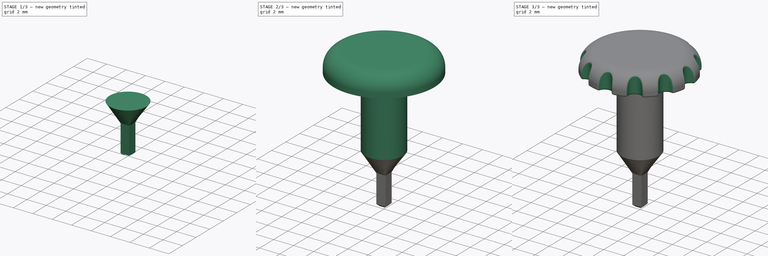
[diagram: build sequence overview — one tinted view per stage of 3, left to right]
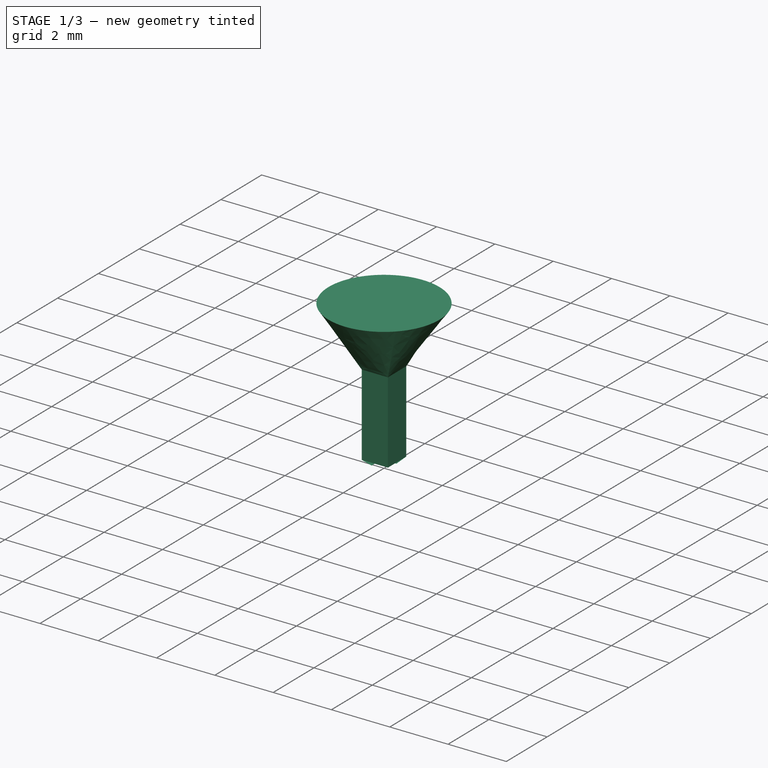
[diagram: stage 1 of 3 — iso view after this stage's code; geometry added in this stage tinted green]
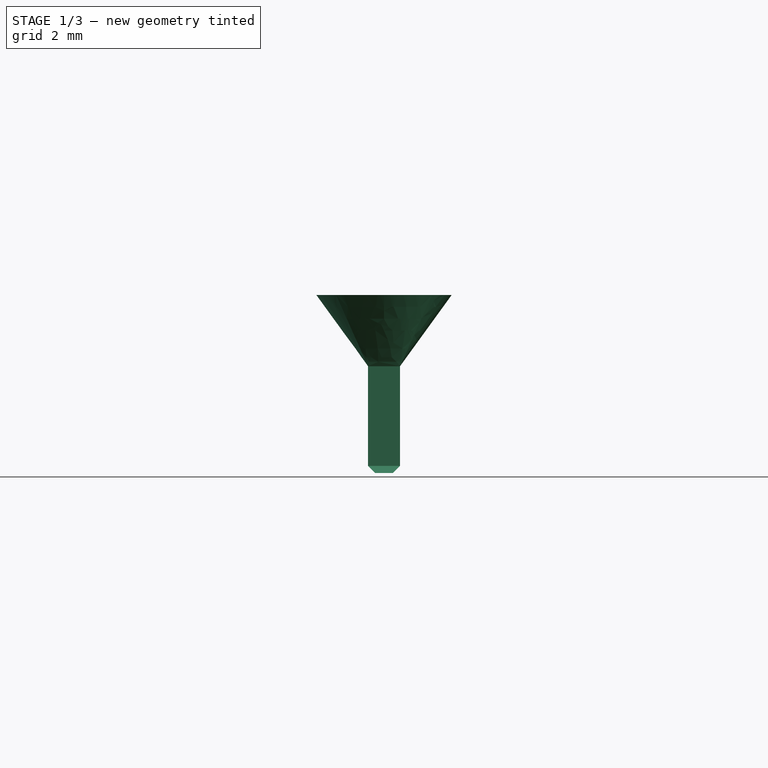
[diagram: stage 1 of 3 — front view after this stage's code; geometry added in this stage tinted green]
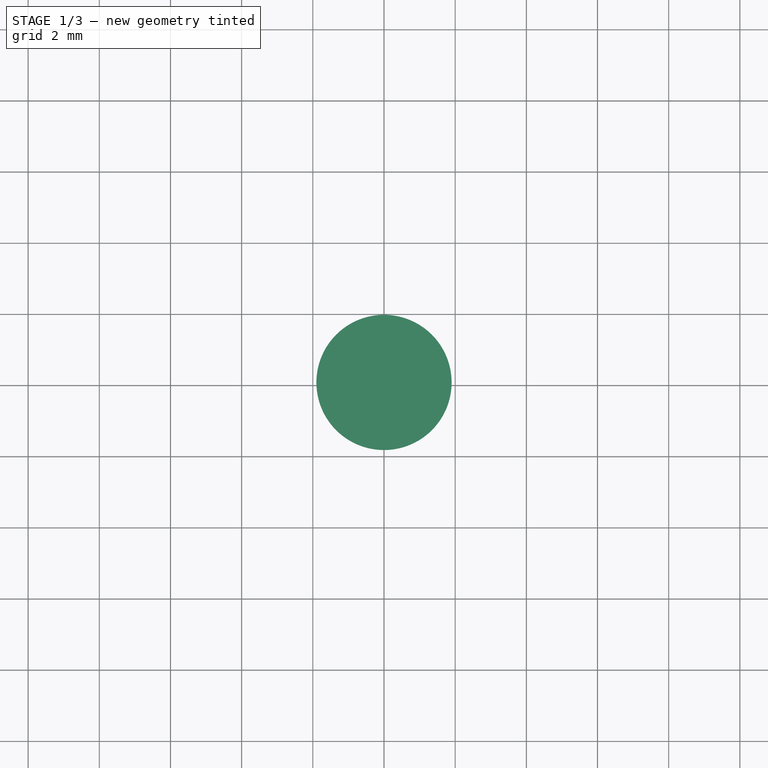
[diagram: stage 1 of 3 — top view after this stage's code; geometry added in this stage tinted green]
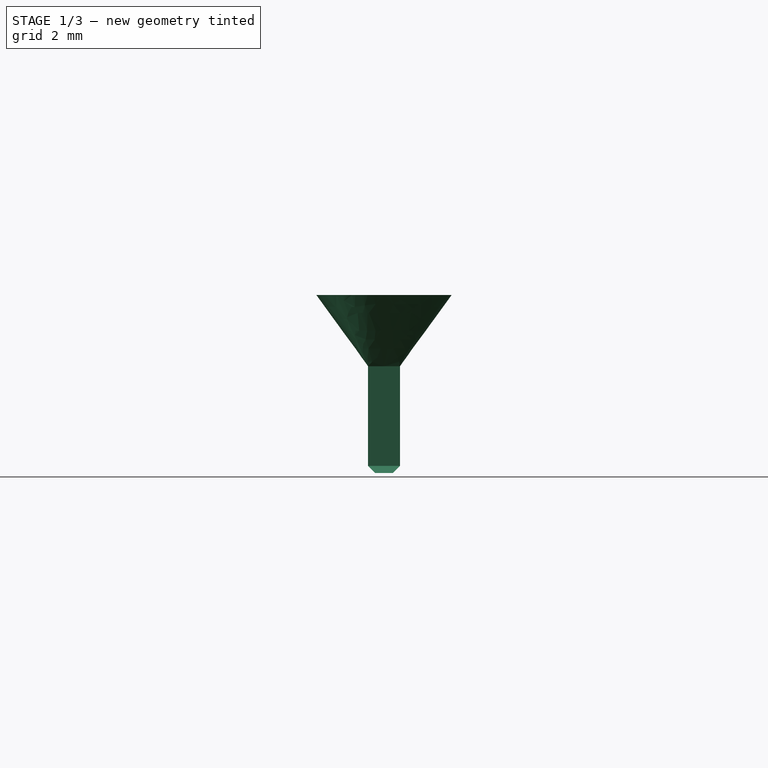
[diagram: stage 1 of 3 — right view after this stage's code; geometry added in this stage tinted green]
FCSTD DOCUMENT  (FreeCAD 1.0R38806 (Git))
Label: EncoderKnob
License: All rights reserved
LicenseURL: http://en.wikipedia.org/wiki/All_rights_reserved
objects: Sketcher::SketchObject×5, PartDesign::Pad×2, PartDesign::Fillet×2, PartDesign::AdditiveLoft×1, PartDesign::Chamfer×1, PartDesign::Pocket×1, PartDesign::Body×1
note: 32 computed .brp shape members not serialized (recipe doc carries the construction recipe); baked Part::Feature solids carry a one-line shape summary decoded from their .brp

FEATURE [Sketcher::SketchObject] Sketch002  label="Sketch 2"
  ArcFitTolerance = 0
  AttachmentOffset = pos=(0,0,5) rot=(0,0,1;0rad)
  AttachmentSupport = -> [XY_Plane]
  FullyConstrained = true
  MakeInternals = false
  MapMode = 5
  Placement = pos=(0,0,5) rot=(0,0,1;0rad)
  sketch-geometry (1):
    g0: Circle CenterX=0 CenterY=0 CenterZ=0 NormalX=0 NormalY=0 NormalZ=1 AngleXU=0 Radius=1.9
  constraints (2):
    c: Coincident(g0,g-1)
    c: Diameter(g0) = 3.8
FEATURE [Sketcher::SketchObject] Sketch  label="Sketch 0"
  ArcFitTolerance = 0
  AttachmentSupport = -> [XY_Plane]
  FullyConstrained = true
  MakeInternals = false
  MapMode = 5
  sketch-geometry (5):
    g0: LineSegment StartX=-0.45 StartY=-0.45 StartZ=0 EndX=-0.45 EndY=0.45 EndZ=0
    g1: LineSegment StartX=-0.45 StartY=0.45 StartZ=0 EndX=0.45 EndY=0.45 EndZ=0
    g2: LineSegment StartX=0.45 StartY=0.45 StartZ=0 EndX=0.45 EndY=-0.45 EndZ=0
    g3: LineSegment StartX=0.45 StartY=-0.45 StartZ=0 EndX=-0.45 EndY=-0.45 EndZ=0
    g4: GeomPoint [constr] X=0 Y=0 Z=0
  constraints (12):
    c: Coincident(g0,g1)
    c: Coincident(g1,g2)
    c: Coincident(g2,g3)
    c: Coincident(g3,g0)
    c: Horizontal(g1)
    c: Horizontal(g3)
    c: Vertical(g0)
    c: Vertical(g2)
    c: Symmetric(g1,g0,g4)
    c: Coincident(g4,g-1)
    c: Equal(g1,g2)
    c: DistanceX(g3,g3) = 0.9
FEATURE [Sketcher::SketchObject] Sketch001  label="Sketch 1"
  ArcFitTolerance = 0
  AttachmentOffset = pos=(0,0,3) rot=(0,0,1;0rad)
  AttachmentSupport = -> [Sketch]
  ExternalGeometry = -> [Sketch]
  FullyConstrained = true
  MakeInternals = false
  MapMode = 2
  Placement = pos=(0,0,3) rot=(0,0,1;0rad)
  sketch-geometry (4):
    g0: LineSegment StartX=-0.45 StartY=0.45 StartZ=0 EndX=0.45 EndY=0.45 EndZ=0
    g1: LineSegment StartX=0.45 StartY=0.45 StartZ=0 EndX=0.45 EndY=-0.45 EndZ=0
    g2: LineSegment StartX=0.45 StartY=-0.45 StartZ=0 EndX=-0.45 EndY=-0.45 EndZ=0
    g3: LineSegment StartX=-0.45 StartY=-0.45 StartZ=0 EndX=-0.45 EndY=0.45 EndZ=0
  constraints (10):
    c: Coincident(g0,g1)
    c: Coincident(g1,g2)
    c: Coincident(g2,g3)
    c: Coincident(g3,g0)
    c: Horizontal(g0)
    c: Horizontal(g2)
    c: Vertical(g1)
    c: Vertical(g3)
    c: Coincident(g0,g-3)
    c: Coincident(g1,g-4)
FEATURE [PartDesign::AdditiveLoft] AdditiveLoft
  Closed = false
  Profile = -> Sketch
  Refine = true
  Ruled = true
  Sections = -> [Sketch001,Sketch002]
  Suppressed = false
FEATURE [PartDesign::Chamfer] Chamfer
  Angle = 45
  Base = -> AdditiveLoft [Edge5,Edge4,Edge3,Edge2,Edge1]
  BaseFeature = -> AdditiveLoft
  ChamferType = 0
  FlipDirection = false
  Size = 0.2
  Size2 = 1
  SupportTransform = false
  Suppressed = false
  UseAllEdges = false
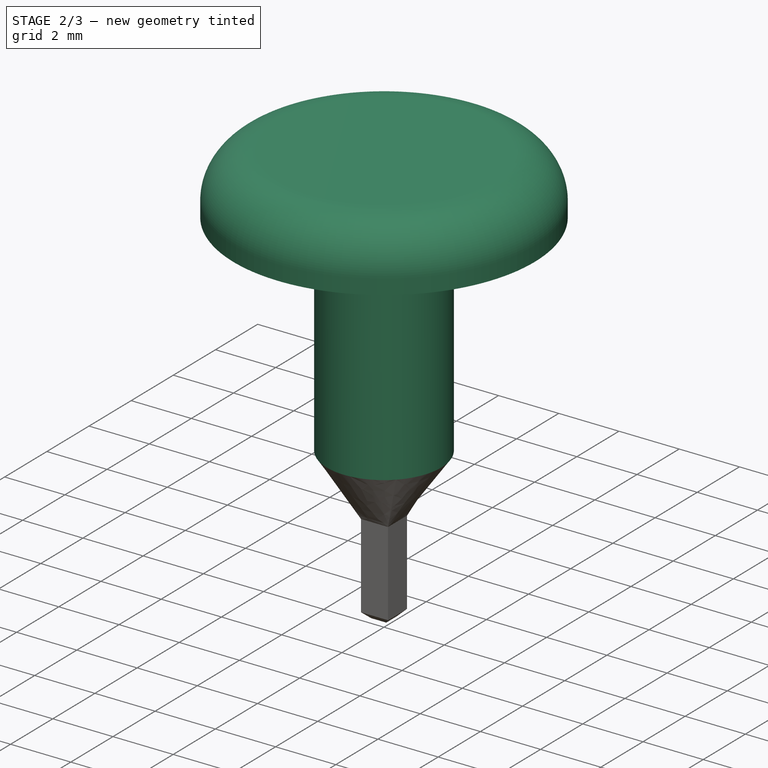
[diagram: stage 2 of 3 — iso view after this stage's code; geometry added in this stage tinted green]
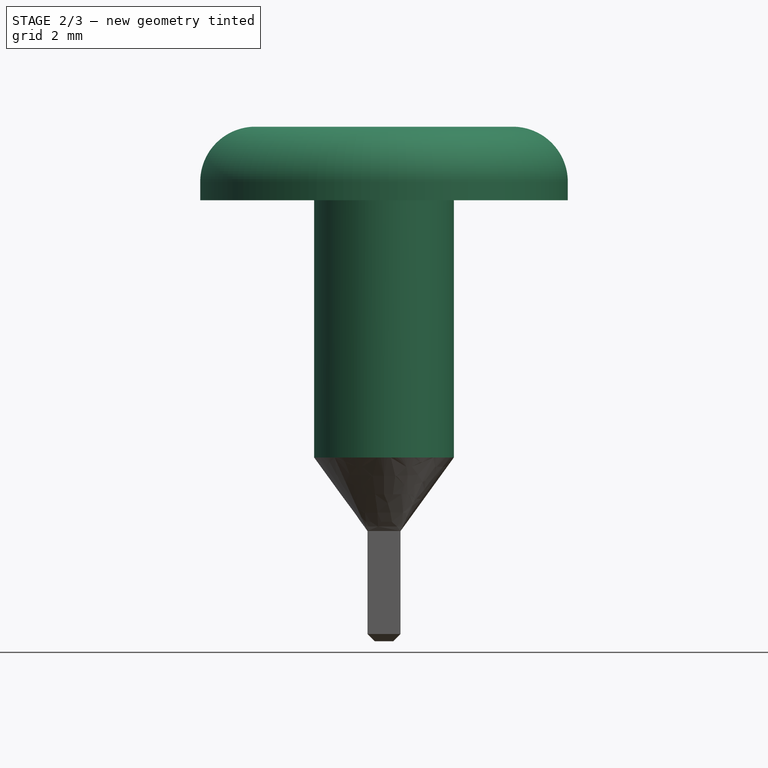
[diagram: stage 2 of 3 — front view after this stage's code; geometry added in this stage tinted green]
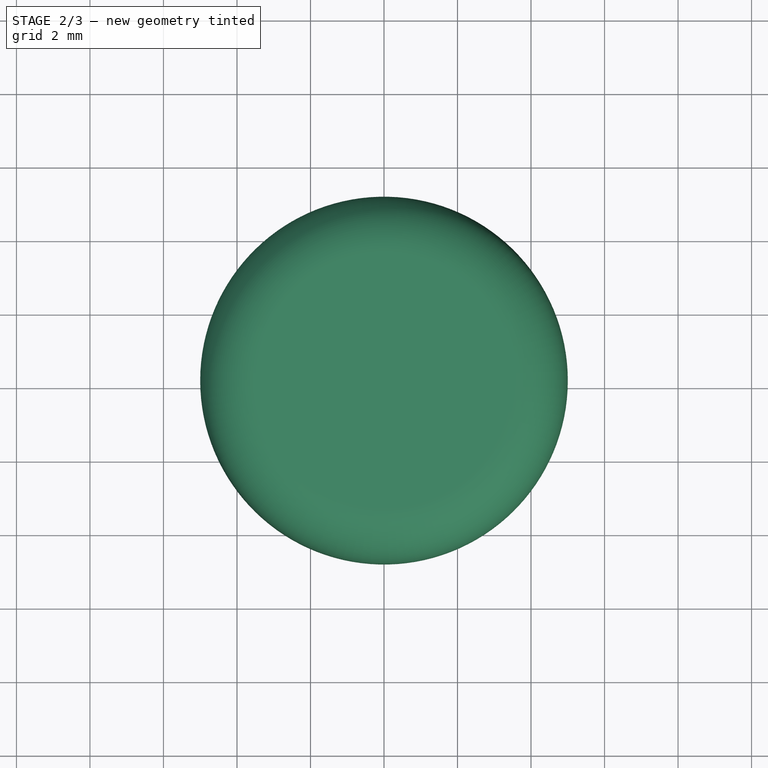
[diagram: stage 2 of 3 — top view after this stage's code; geometry added in this stage tinted green]
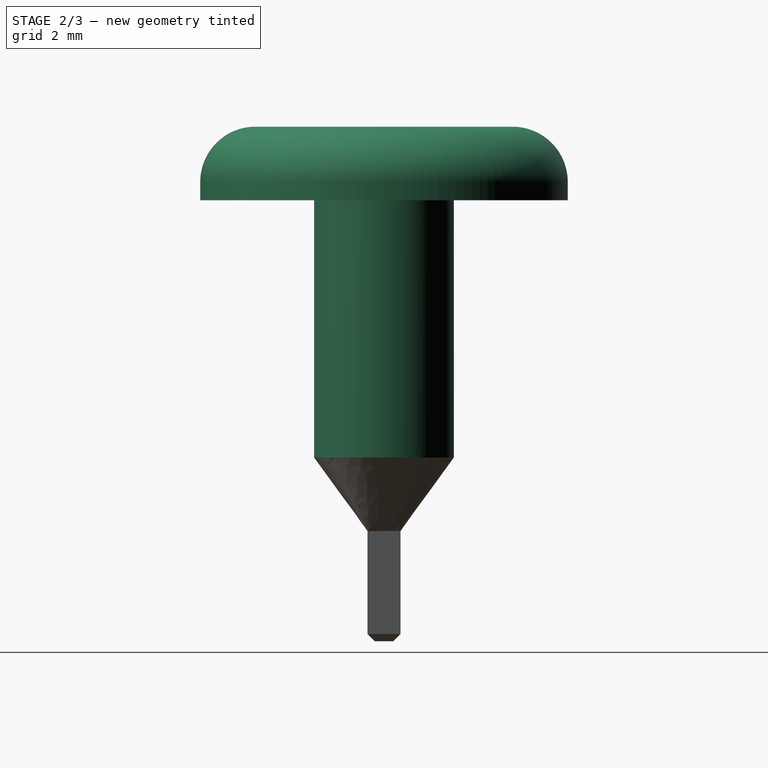
[diagram: stage 2 of 3 — right view after this stage's code; geometry added in this stage tinted green]
FEATURE [PartDesign::Pad] Pad
  BaseFeature = -> Chamfer
  Direction = (0,0,1)
  Length = 7
  Length2 = 10
  Profile = -> Sketch002
  ReferenceAxis = -> Sketch002 [N_Axis]
  Suppressed = false
  Type = 0
FEATURE [Sketcher::SketchObject] Sketch003
  ArcFitTolerance = 0
  AttachmentSupport = -> [Pad]
  ExternalGeometry = -> [Pad]
  FullyConstrained = true
  MakeInternals = false
  MapMode = 5
  Placement = pos=(0,0,12) rot=(0,0,1;0rad)
  sketch-geometry (1):
    g0: Circle CenterX=0 CenterY=0 CenterZ=0 NormalX=0 NormalY=0 NormalZ=1 AngleXU=0 Radius=5
  constraints (2):
    c: Diameter(g0) = 10
    c: Coincident(g0,g-3)
FEATURE [PartDesign::Pad] Pad001
  BaseFeature = -> Pad
  Direction = (0,0,1)
  Length = 2
  Length2 = 10
  Profile = -> Sketch003
  ReferenceAxis = -> Sketch003 [N_Axis]
  Suppressed = false
  Type = 0
FEATURE [Sketcher::SketchObject] Sketch004
  ArcFitTolerance = 0
  AttachmentSupport = -> [Pad001]
  ExternalGeometry = -> [Pad001]
  FullyConstrained = true
  MakeInternals = false
  MapMode = 5
  Placement = pos=(0,0,14) rot=(0,0,1;0rad)
  sketch-geometry (36):
    g0: ArcOfCircle CenterX=0 CenterY=5 CenterZ=0 NormalX=0 NormalY=0 NormalZ=1 AngleXU=0 Radius=0.6 StartAngle=3.20163 EndAngle=6.22315
    g1: ArcOfCircle CenterX=2.5 CenterY=4.33013 CenterZ=0 NormalX=0 NormalY=0 NormalZ=1 AngleXU=0 Radius=0.6 StartAngle=2.67803 EndAngle=5.69955
    g2: ArcOfCircle CenterX=4.33013 CenterY=2.5 CenterZ=0 NormalX=0 NormalY=0 NormalZ=1 AngleXU=0 Radius=0.6 StartAngle=2.15443 EndAngle=5.17595
    g3: ArcOfCircle CenterX=5 CenterY=0 CenterZ=0 NormalX=0 NormalY=0 NormalZ=1 AngleXU=0 Radius=0.6 StartAngle=1.63083 EndAngle=4.65235
    g4: ArcOfCircle CenterX=4.33013 CenterY=-2.5 CenterZ=0 NormalX=0 NormalY=0 NormalZ=1 AngleXU=0 Radius=0.6 StartAngle=1.10723 EndAngle=4.12875
    g5: ArcOfCircle CenterX=2.5 CenterY=-4.33013 CenterZ=0 NormalX=0 NormalY=0 NormalZ=1 AngleXU=0 Radius=0.6 StartAngle=0.583635 EndAngle=3.60516
    g6: ArcOfCircle CenterX=0 CenterY=-5 CenterZ=0 NormalX=0 NormalY=0 NormalZ=1 AngleXU=0 Radius=0.6 StartAngle=0.0600361 EndAngle=3.08156
    g7: ArcOfCircle CenterX=-2.5 CenterY=-4.33013 CenterZ=0 NormalX=0 NormalY=0 NormalZ=1 AngleXU=0 Radius=0.6 StartAngle=5.81962 EndAngle=8.84114
    g8: ArcOfCircle CenterX=-4.33013 CenterY=-2.5 CenterZ=0 NormalX=0 NormalY=0 NormalZ=1 AngleXU=0 Radius=0.6 StartAngle=5.29602 EndAngle=8.31754
    g9: ArcOfCircle CenterX=-5 CenterY=0 CenterZ=0 NormalX=0 NormalY=0 NormalZ=1 AngleXU=0 Radius=0.6 StartAngle=4.77243 EndAngle=7.79395
    g10: ArcOfCircle CenterX=-4.33013 CenterY=2.5 CenterZ=0 NormalX=0 NormalY=0 NormalZ=1 AngleXU=0 Radius=0.6 StartAngle=4.24883 EndAngle=7.27035
    g11: ArcOfCircle CenterX=-2.5 CenterY=4.33013 CenterZ=0 NormalX=0 NormalY=0 NormalZ=1 AngleXU=0 Radius=0.6 StartAngle=3.72523 EndAngle=6.74675
    g12: LineSegment [constr] StartX=0 StartY=0 StartZ=0 EndX=0 EndY=5 EndZ=0
    g13: LineSegment [constr] StartX=0 StartY=0 StartZ=0 EndX=2.5 EndY=4.33013 EndZ=0
    g14: LineSegment [constr] StartX=0 StartY=0 StartZ=0 EndX=4.33013 EndY=2.5 EndZ=0
    g15: LineSegment [constr] StartX=0 StartY=0 StartZ=0 EndX=5 EndY=0 EndZ=0
    g16: LineSegment [constr] StartX=0 StartY=0 StartZ=0 EndX=4.33013 EndY=-2.5 EndZ=0
    g17: LineSegment [constr] StartX=0 StartY=0 StartZ=0 EndX=2.5 EndY=-4.33013 EndZ=0
    g18: LineSegment [constr] StartX=0 StartY=0 StartZ=0 EndX=0 EndY=-5 EndZ=0
    g19: LineSegment [constr] StartX=0 StartY=0 StartZ=0 EndX=-2.5 EndY=-4.33013 EndZ=0
    g20: LineSegment [constr] StartX=0 StartY=0 StartZ=0 EndX=-4.33013 EndY=-2.5 EndZ=0
    g21: LineSegment [constr] StartX=0 StartY=0 StartZ=0 EndX=-5 EndY=0 EndZ=0
    g22: LineSegment [constr] StartX=0 StartY=0 StartZ=0 EndX=-4.33013 EndY=2.5 EndZ=0
    g23: LineSegment [constr] StartX=0 StartY=0 StartZ=0 EndX=-2.5 EndY=4.33013 EndZ=0
    g24: ArcOfCircle CenterX=0 CenterY=0 CenterZ=0 NormalX=0 NormalY=0 NormalZ=1 AngleXU=0 Radius=5 StartAngle=1.45072 EndAngle=1.69087
    g25: ArcOfCircle CenterX=0 CenterY=0 CenterZ=0 NormalX=0 NormalY=0 NormalZ=1 AngleXU=0 Radius=5 StartAngle=0.927125 EndAngle=1.16727
    g26: ArcOfCircle CenterX=0 CenterY=0 CenterZ=0 NormalX=0 NormalY=0 NormalZ=1 AngleXU=0 Radius=5 StartAngle=0.403527 EndAngle=0.643671
    g27: ArcOfCircle CenterX=0 CenterY=0 CenterZ=0 NormalX=0 NormalY=0 NormalZ=1 AngleXU=0 Radius=5 StartAngle=6.16311 EndAngle=6.40326
    g28: ArcOfCircle CenterX=0 CenterY=0 CenterZ=0 NormalX=0 NormalY=0 NormalZ=1 AngleXU=0 Radius=5 StartAngle=5.63951 EndAngle=5.87966
    g29: ArcOfCircle CenterX=0 CenterY=0 CenterZ=0 NormalX=0 NormalY=0 NormalZ=1 AngleXU=0 Radius=5 StartAngle=5.11592 EndAngle=5.35606
    g30: ArcOfCircle CenterX=0 CenterY=0 CenterZ=0 NormalX=0 NormalY=0 NormalZ=1 AngleXU=0 Radius=5 StartAngle=4.59232 EndAngle=4.83246
    g31: ArcOfCircle CenterX=0 CenterY=0 CenterZ=0 NormalX=0 NormalY=0 NormalZ=1 AngleXU=0 Radius=5 StartAngle=4.06872 EndAngle=4.30886
    g32: ArcOfCircle CenterX=0 CenterY=0 CenterZ=0 NormalX=0 NormalY=0 NormalZ=1 AngleXU=0 Radius=5 StartAngle=3.54512 EndAngle=3.78526
    g33: ArcOfCircle CenterX=0 CenterY=0 CenterZ=0 NormalX=0 NormalY=0 NormalZ=1 AngleXU=0 Radius=5 StartAngle=3.02152 EndAngle=3.26166
    g34: ArcOfCircle CenterX=0 CenterY=0 CenterZ=0 NormalX=0 NormalY=0 NormalZ=1 AngleXU=0 Radius=5 StartAngle=2.49792 EndAngle=2.73807
    g35: ArcOfCircle CenterX=0 CenterY=0 CenterZ=0 NormalX=0 NormalY=0 NormalZ=1 AngleXU=0 Radius=5 StartAngle=1.97432 EndAngle=2.21447
  constraints (108):
    c: PointOnObject(g0,g-3)
    c: PointOnObject(g0,g-3)
    c: Diameter(g0) = 1.2
    c: PointOnObject(g1,g-3)
    c: PointOnObject(g1,g-3)
    c: Equal(g0,g1)
    c: PointOnObject(g2,g-3)
    c: PointOnObject(g2,g-3)
    c: PointOnObject(g3,g-3)
    c: PointOnObject(g3,g-3)
    c: PointOnObject(g4,g-3)
    c: PointOnObject(g4,g-3)
    c: PointOnObject(g5,g-3)
    c: PointOnObject(g5,g-3)
    c: PointOnObject(g6,g-3)
    c: PointOnObject(g6,g-3)
    c: PointOnObject(g7,g-3)
    c: PointOnObject(g7,g-3)
    c: PointOnObject(g8,g-3)
    c: PointOnObject(g8,g-3)
    c: PointOnObject(g9,g-3)
    c: PointOnObject(g9,g-3)
    c: PointOnObject(g10,g-3)
    c: PointOnObject(g10,g-3)
    c: PointOnObject(g11,g-3)
    c: Equal(g0,g2)
    c: Coincident(g12,g-3)
    c: Coincident(g12,g0)
    c: Coincident(g13,g12)
    c: Coincident(g13,g1)
    c: Coincident(g14,g12)
    c: Coincident(g14,g2)
    c: Coincident(g15,g12)
    c: Coincident(g15,g3)
    c: Horizontal(g15)
    c: Coincident(g16,g12)
    c: Coincident(g16,g4)
    c: Coincident(g17,g12)
    c: Coincident(g17,g5)
    c: Coincident(g18,g12)
    c: Coincident(g18,g6)
    c: Vertical(g18)
    c: Coincident(g19,g12)
    c: Coincident(g19,g7)
    c: Coincident(g20,g12)
    c: Coincident(g20,g8)
    c: Coincident(g21,g12)
    c: Coincident(g21,g9)
    c: Horizontal(g21)
    c: Coincident(g22,g12)
    c: Coincident(g22,g10)
    c: Coincident(g23,g12)
    c: Coincident(g23,g11)
    c: Angle(g15,g14) = 0.523599
    c: Angle(g12,g23) = 0.523599
    c: Angle(g23,g22) = 0.523599
    c: Angle(g21,g20) = 0.523599
    c: Angle(g20,g19) = 0.523599
    c: Angle(g18,g17) = 0.523599
    c: Angle(g17,g16) = 0.523599
    c: Equal(g0,g4)
    c: Equal(g0,g8)
    c: Angle(g14,g13) = 0.523599
    c: PointOnObject(g11,g-3)
    c: Equal(g0,g11)
    c: Equal(g0,g10)
    c: Equal(g0,g6)
    c: Equal(g0,g3)
    c: Coincident(g24,g12)
    c: Coincident(g24,g0)
    c: Coincident(g24,g0)
    c: Coincident(g25,g24)
    c: Coincident(g25,g1)
    c: Coincident(g25,g1)
    c: Coincident(g26,g24)
    c: Coincident(g26,g2)
    c: Coincident(g26,g2)
    c: Coincident(g27,g24)
    c: Coincident(g27,g3)
    c: Coincident(g27,g3)
    c: Coincident(g28,g24)
    c: Coincident(g28,g4)
    c: Coincident(g28,g4)
    c: Coincident(g29,g24)
    c: Coincident(g29,g5)
    c: Coincident(g29,g5)
    c: Coincident(g30,g24)
    c: Coincident(g30,g6)
    c: Coincident(g30,g6)
    c: Coincident(g31,g24)
    c: Coincident(g31,g7)
    c: Coincident(g31,g7)
    c: Coincident(g32,g24)
    c: Coincident(g32,g8)
    c: Coincident(g32,g8)
    c: Coincident(g33,g24)
    c: Coincident(g33,g9)
    c: Coincident(g33,g9)
    c: Coincident(g34,g24)
    c: Coincident(g34,g10)
    c: Coincident(g34,g10)
    c: Coincident(g35,g24)
    c: Coincident(g35,g11)
    c: Coincident(g35,g11)
    c: Equal(g7,g0)
    c: Equal(g9,g0)
    c: Vertical(g12)
    c: Equal(g5,g0)
FEATURE [PartDesign::Fillet] Fillet001
  Base = -> Pad001 [Edge3]
  BaseFeature = -> Pad001
  Radius = 1.5
  SupportTransform = false
  Suppressed = false
  UseAllEdges = false
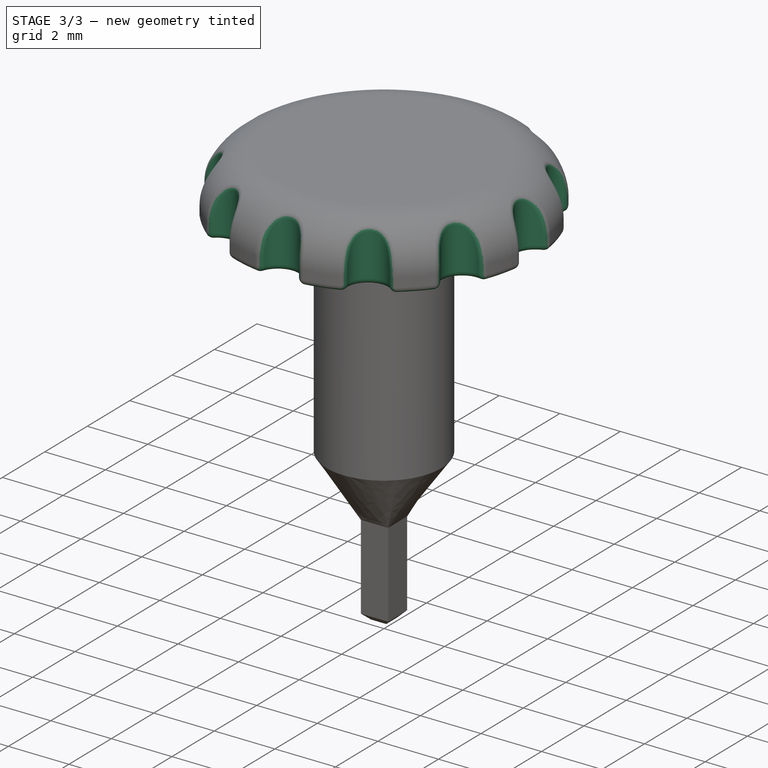
[diagram: stage 3 of 3 — iso view after this stage's code; geometry added in this stage tinted green]
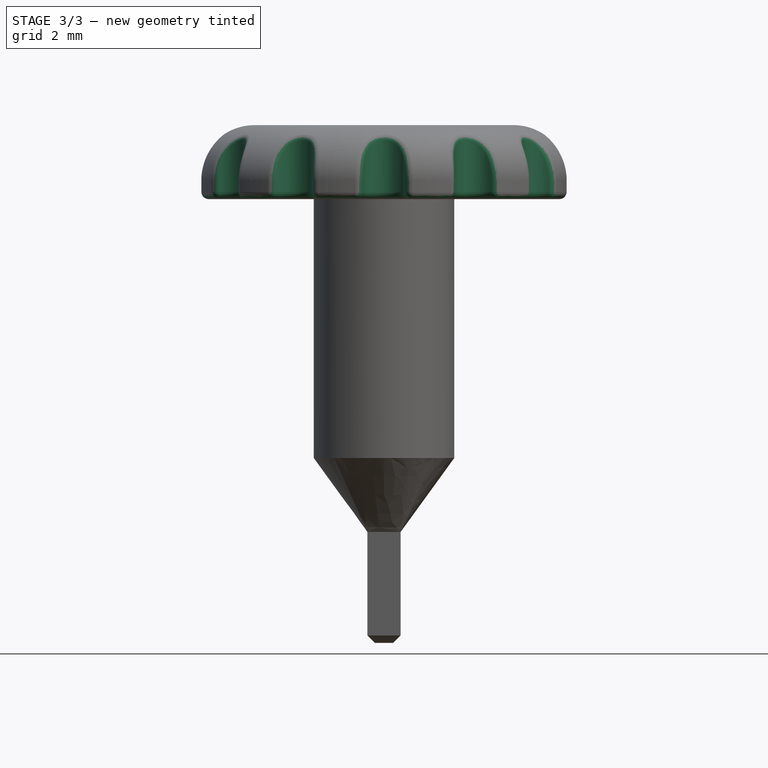
[diagram: stage 3 of 3 — front view after this stage's code; geometry added in this stage tinted green]
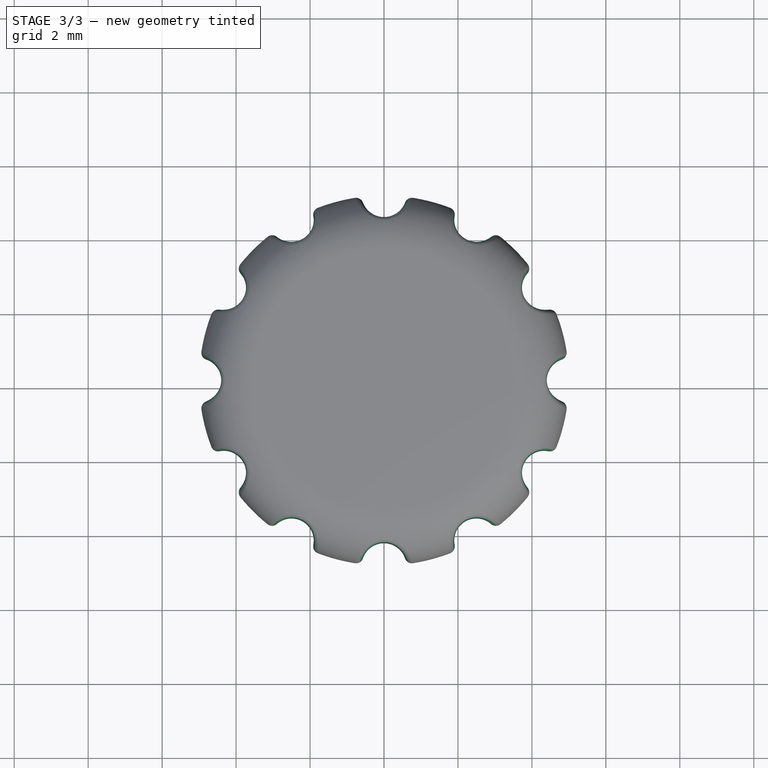
[diagram: stage 3 of 3 — top view after this stage's code; geometry added in this stage tinted green]
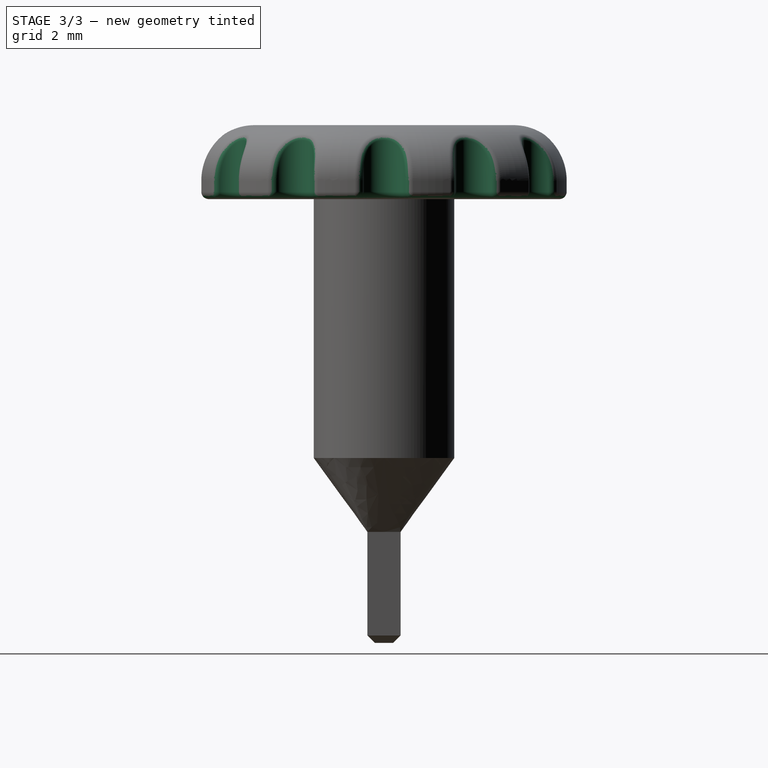
[diagram: stage 3 of 3 — right view after this stage's code; geometry added in this stage tinted green]
FEATURE [PartDesign::Pocket] Pocket
  BaseFeature = -> Fillet001
  Direction = (0,0,-1)
  Length = 1.5
  Length2 = 5
  Profile = -> Sketch004
  ReferenceAxis = -> Sketch004 [N_Axis]
  Suppressed = false
  Type = 1
FEATURE [PartDesign::Fillet] Fillet
  Base = -> Pocket [Edge54,Edge52,Edge53,Edge51,Edge50,Edge49,Edge27,Edge24,Edge21,Edge48,Edge47,Edge46,Edge45,Edge44,Edge43,Edge42,Edge40,Edge55,Edge56,Edge57,Edge58,Edge59,Edge38,Edge3,Edge37,Edge39,Edge18,Edge16,Edge13,Edge10,Edge8,Edge6,Edge33,Edge31,Edge29,Edge41]
  BaseFeature = -> Pocket
  Radius = 0.2
  Refine = true
  SupportTransform = false
  Suppressed = false
  UseAllEdges = false
FEATURE [PartDesign::Body] Body
  AllowCompound = false
  Group = -> [Sketch,Sketch001,Sketch002,AdditiveLoft,Chamfer,Pad,Sketch003,Pad001,Sketch004,Fillet001,Pocket,Fillet]
  Origin = -> Origin
  Tip = -> Fillet
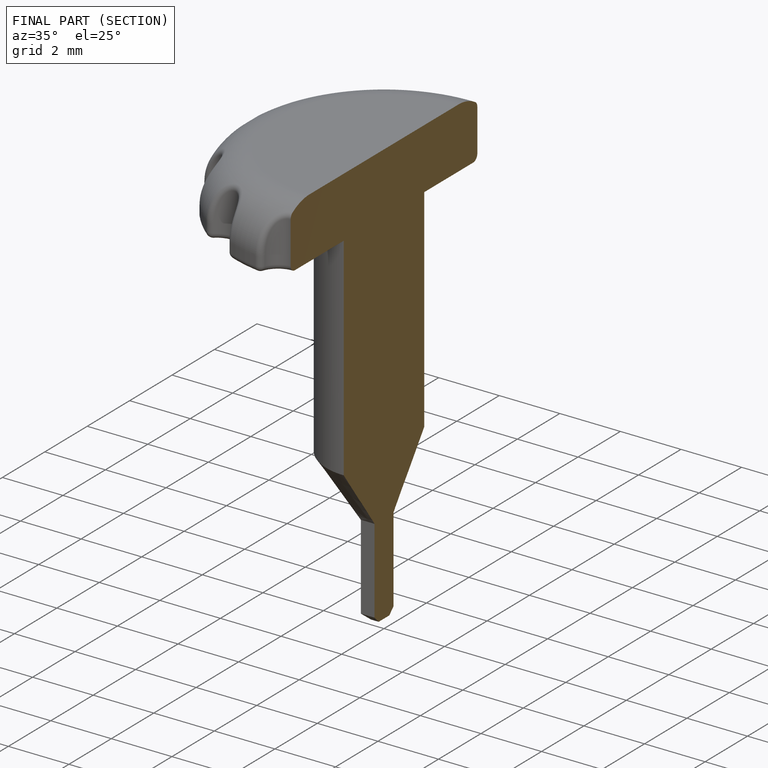
[diagram: finished part — half-section view (interior)]
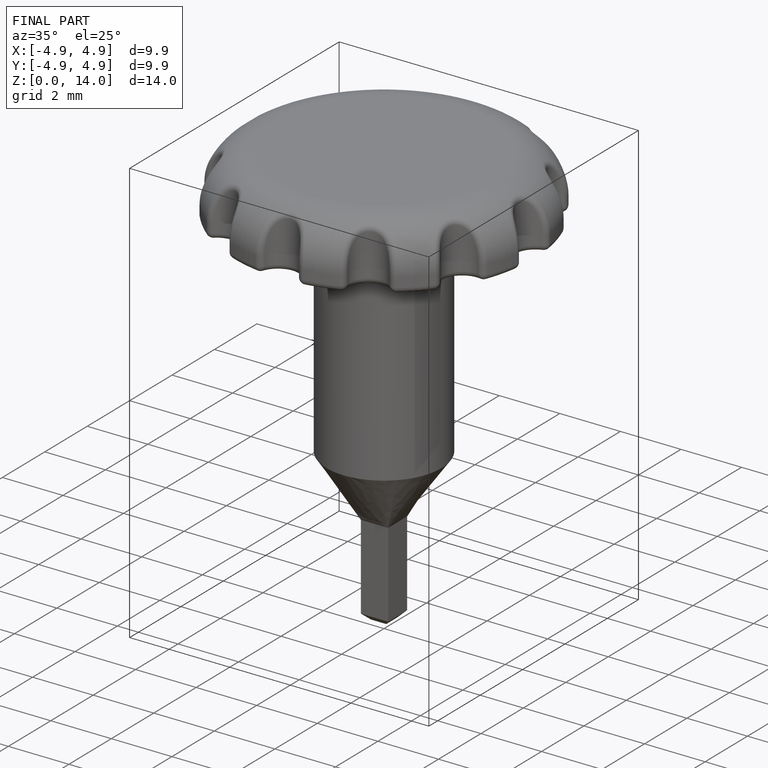
[diagram: finished part — iso view with bounding-box wireframe]
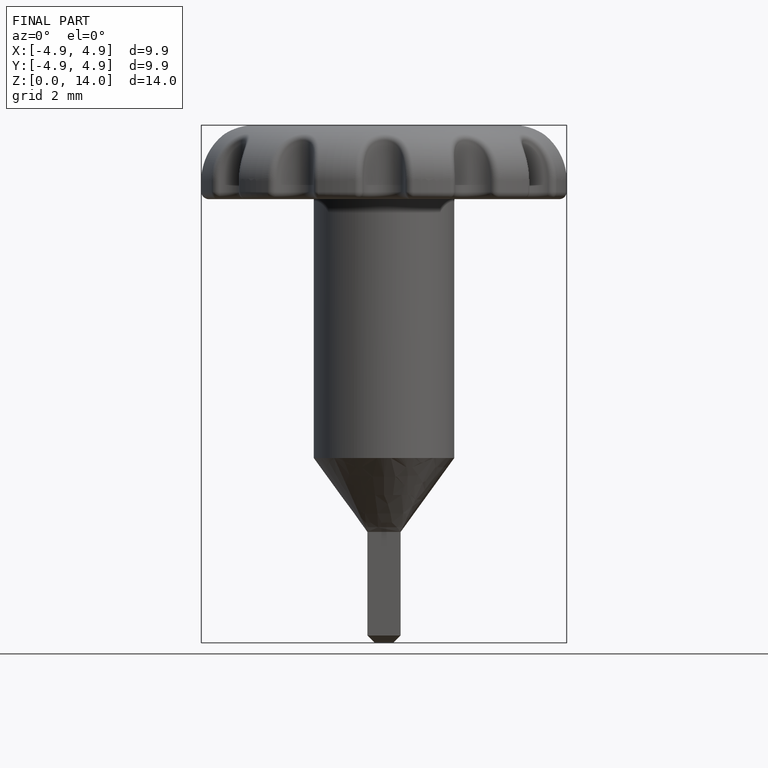
[diagram: finished part — front view with bounding-box wireframe]
